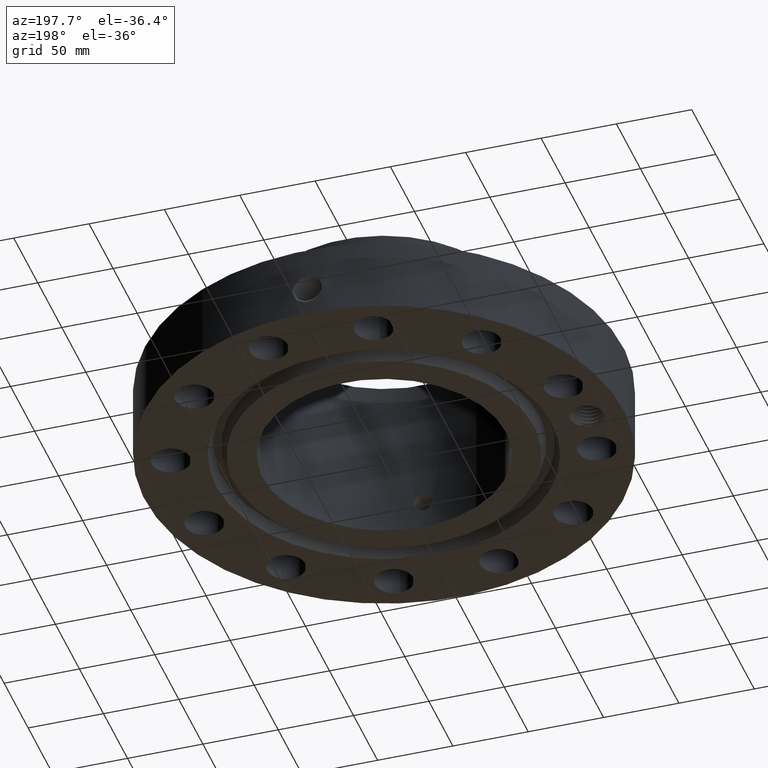
[diagram: clean part render]
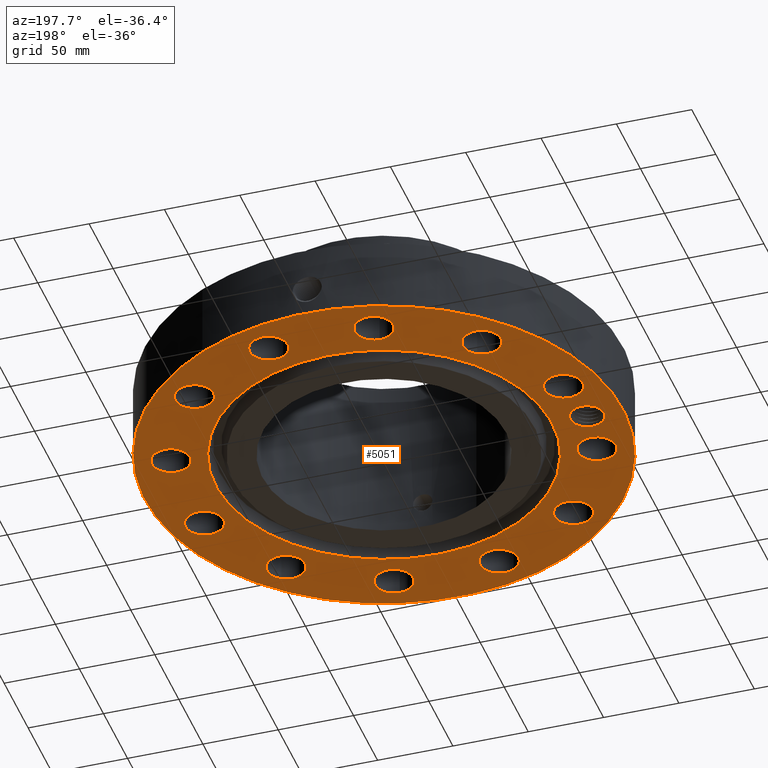
[diagram: same view with one face highlighted and labeled with its STEP entity id]
A machine part, auxiliary view. The second image highlights one B-rep face of the part: STEP entity #5051.
In plain terms, the highlighted planar face has unit normal (0, 0, -1).
Its self-contained STEP definition (entity closure, byte-faithful):
#598=AXIS2_PLACEMENT_3D('Plane Axis2P3D',#595,#596,#597) ;
#3512=AXIS2_PLACEMENT_3D('Circle Axis2P3D',#3510,#3511,$) ;
#3538=AXIS2_PLACEMENT_3D('Circle Axis2P3D',#3536,#3537,$) ;
#3811=AXIS2_PLACEMENT_3D('Circle Axis2P3D',#3809,#3810,$) ;
#3923=AXIS2_PLACEMENT_3D('Circle Axis2P3D',#3921,#3922,$) ;
#4180=AXIS2_PLACEMENT_3D('Circle Axis2P3D',#4178,#4179,$) ;
#4199=AXIS2_PLACEMENT_3D('Circle Axis2P3D',#4197,#4198,$) ;
#4223=AXIS2_PLACEMENT_3D('Circle Axis2P3D',#4221,#4222,$) ;
#4242=AXIS2_PLACEMENT_3D('Circle Axis2P3D',#4240,#4241,$) ;
#4266=AXIS2_PLACEMENT_3D('Circle Axis2P3D',#4264,#4265,$) ;
#4285=AXIS2_PLACEMENT_3D('Circle Axis2P3D',#4283,#4284,$) ;
#4309=AXIS2_PLACEMENT_3D('Circle Axis2P3D',#4307,#4308,$) ;
#4328=AXIS2_PLACEMENT_3D('Circle Axis2P3D',#4326,#4327,$) ;
#4352=AXIS2_PLACEMENT_3D('Circle Axis2P3D',#4350,#4351,$) ;
#4371=AXIS2_PLACEMENT_3D('Circle Axis2P3D',#4369,#4370,$) ;
#4395=AXIS2_PLACEMENT_3D('Circle Axis2P3D',#4393,#4394,$) ;
#4414=AXIS2_PLACEMENT_3D('Circle Axis2P3D',#4412,#4413,$) ;
#4438=AXIS2_PLACEMENT_3D('Circle Axis2P3D',#4436,#4437,$) ;
#4457=AXIS2_PLACEMENT_3D('Circle Axis2P3D',#4455,#4456,$) ;
#4481=AXIS2_PLACEMENT_3D('Circle Axis2P3D',#4479,#4480,$) ;
#4500=AXIS2_PLACEMENT_3D('Circle Axis2P3D',#4498,#4499,$) ;
#4524=AXIS2_PLACEMENT_3D('Circle Axis2P3D',#4522,#4523,$) ;
#4543=AXIS2_PLACEMENT_3D('Circle Axis2P3D',#4541,#4542,$) ;
#4567=AXIS2_PLACEMENT_3D('Circle Axis2P3D',#4565,#4566,$) ;
#4586=AXIS2_PLACEMENT_3D('Circle Axis2P3D',#4584,#4585,$) ;
#4610=AXIS2_PLACEMENT_3D('Circle Axis2P3D',#4608,#4609,$) ;
#4629=AXIS2_PLACEMENT_3D('Circle Axis2P3D',#4627,#4628,$) ;
#4653=AXIS2_PLACEMENT_3D('Circle Axis2P3D',#4651,#4652,$) ;
#4672=AXIS2_PLACEMENT_3D('Circle Axis2P3D',#4670,#4671,$) ;
#4983=AXIS2_PLACEMENT_3D('Circle Axis2P3D',#4981,#4982,$) ;
#4992=AXIS2_PLACEMENT_3D('Circle Axis2P3D',#4990,#4991,$) ;
#595=CARTESIAN_POINT('Axis2P3D Location',(0.,3.17850000001,0.)) ;
#3510=CARTESIAN_POINT('Axis2P3D Location',(0.,0.,-3.49676543189E-017)) ;
#3514=CARTESIAN_POINT('Vertex',(-2.10491782725,3.853026238,-3.49676543189E-017)) ;
#3516=CARTESIAN_POINT('Vertex',(2.10491782725,-3.853026238,-3.49676543189E-017)) ;
#3536=CARTESIAN_POINT('Axis2P3D Location',(0.,0.,-3.49676543189E-017)) ;
#3809=CARTESIAN_POINT('Axis2P3D Location',(0.,0.,5.59482469102E-016)) ;
#3813=CARTESIAN_POINT('Vertex',(-2.99640961629,-5.48489101184,8.39223703654E-016)) ;
#3815=CARTESIAN_POINT('Vertex',(2.99640961629,5.48489101184,8.39223703654E-016)) ;
#3921=CARTESIAN_POINT('Axis2P3D Location',(0.,0.,5.59482469102E-016)) ;
#4175=CARTESIAN_POINT('Vertex',(5.56785741856,-1.6140418988,0.)) ;
#4178=CARTESIAN_POINT('Axis2P3D Location',(5.12906613762,-1.3743291295,0.)) ;
#4182=CARTESIAN_POINT('Vertex',(4.69027485667,-1.1346163602,0.)) ;
#4197=CARTESIAN_POINT('Axis2P3D Location',(5.12906613762,-1.3743291295,0.)) ;
#4218=CARTESIAN_POINT('Vertex',(3.49458899651,-3.32774401981,0.)) ;
#4221=CARTESIAN_POINT('Axis2P3D Location',(3.75473700812,-3.75473700812,0.)) ;
#4225=CARTESIAN_POINT('Vertex',(4.01488501972,-4.18172999642,0.)) ;
#4240=CARTESIAN_POINT('Axis2P3D Location',(3.75473700812,-3.75473700812,0.)) ;
#4261=CARTESIAN_POINT('Vertex',(1.36253083685,-4.6292053567,0.)) ;
#4264=CARTESIAN_POINT('Axis2P3D Location',(1.3743291295,-5.12906613762,0.)) ;
#4268=CARTESIAN_POINT('Vertex',(1.38612742215,-5.62892691853,0.)) ;
#4283=CARTESIAN_POINT('Axis2P3D Location',(1.3743291295,-5.12906613762,0.)) ;
#4304=CARTESIAN_POINT('Vertex',(-1.1346163602,-4.69027485667,0.)) ;
#4307=CARTESIAN_POINT('Axis2P3D Location',(-1.3743291295,-5.12906613762,0.)) ;
#4311=CARTESIAN_POINT('Vertex',(-1.6140418988,-5.56785741856,0.)) ;
#4326=CARTESIAN_POINT('Axis2P3D Location',(-1.3743291295,-5.12906613762,0.)) ;
#4347=CARTESIAN_POINT('Vertex',(-3.32774401981,-3.49458899651,0.)) ;
#4350=CARTESIAN_POINT('Axis2P3D Location',(-3.75473700812,-3.75473700812,-1.67844740731E-015)) ;
#4354=CARTESIAN_POINT('Vertex',(-4.18172999642,-4.01488501972,-1.67844740731E-015)) ;
#4369=CARTESIAN_POINT('Axis2P3D Location',(-3.75473700812,-3.75473700812,-1.67844740731E-015)) ;
#4390=CARTESIAN_POINT('Vertex',(-4.6292053567,-1.36253083685,0.)) ;
#4393=CARTESIAN_POINT('Axis2P3D Location',(-5.12906613762,-1.3743291295,0.)) ;
#4397=CARTESIAN_POINT('Vertex',(-5.62892691853,-1.38612742215,0.)) ;
#4412=CARTESIAN_POINT('Axis2P3D Location',(-5.12906613762,-1.3743291295,0.)) ;
#4433=CARTESIAN_POINT('Vertex',(-4.69027485667,1.1346163602,0.)) ;
#4436=CARTESIAN_POINT('Axis2P3D Location',(-5.12906613762,1.3743291295,0.)) ;
#4440=CARTESIAN_POINT('Vertex',(-5.56785741856,1.6140418988,0.)) ;
#4455=CARTESIAN_POINT('Axis2P3D Location',(-5.12906613762,1.3743291295,0.)) ;
#4476=CARTESIAN_POINT('Vertex',(-3.49458899651,3.32774401981,0.)) ;
#4479=CARTESIAN_POINT('Axis2P3D Location',(-3.75473700812,3.75473700812,0.)) ;
#4483=CARTESIAN_POINT('Vertex',(-4.01488501972,4.18172999642,0.)) ;
#4498=CARTESIAN_POINT('Axis2P3D Location',(-3.75473700812,3.75473700812,0.)) ;
#4519=CARTESIAN_POINT('Vertex',(-1.36253083685,4.6292053567,0.)) ;
#4522=CARTESIAN_POINT('Axis2P3D Location',(-1.3743291295,5.12906613762,0.)) ;
#4526=CARTESIAN_POINT('Vertex',(-1.38612742215,5.62892691853,0.)) ;
#4541=CARTESIAN_POINT('Axis2P3D Location',(-1.3743291295,5.12906613762,0.)) ;
#4562=CARTESIAN_POINT('Vertex',(1.1346163602,4.69027485667,0.)) ;
#4565=CARTESIAN_POINT('Axis2P3D Location',(1.3743291295,5.12906613762,0.)) ;
#4569=CARTESIAN_POINT('Vertex',(1.6140418988,5.56785741856,0.)) ;
#4584=CARTESIAN_POINT('Axis2P3D Location',(1.3743291295,5.12906613762,0.)) ;
#4605=CARTESIAN_POINT('Vertex',(3.32774401981,3.49458899651,0.)) ;
#4608=CARTESIAN_POINT('Axis2P3D Location',(3.75473700812,3.75473700812,0.)) ;
#4612=CARTESIAN_POINT('Vertex',(4.18172999642,4.01488501972,0.)) ;
#4627=CARTESIAN_POINT('Axis2P3D Location',(3.75473700812,3.75473700812,0.)) ;
#4648=CARTESIAN_POINT('Vertex',(4.6292053567,1.36253083685,0.)) ;
#4651=CARTESIAN_POINT('Axis2P3D Location',(5.12906613762,1.3743291295,0.)) ;
#4655=CARTESIAN_POINT('Vertex',(5.62892691853,1.38612742215,0.)) ;
#4670=CARTESIAN_POINT('Axis2P3D Location',(5.12906613762,1.3743291295,0.)) ;
#4981=CARTESIAN_POINT('Axis2P3D Location',(-5.31000000002,5.59482469102E-016,0.)) ;
#4985=CARTESIAN_POINT('Vertex',(-4.92140644161,-0.212289628495,0.)) ;
#4987=CARTESIAN_POINT('Vertex',(-5.69859355843,0.212289628495,0.)) ;
#4990=CARTESIAN_POINT('Axis2P3D Location',(-5.31000000002,5.59482469102E-016,0.)) ;
#596=DIRECTION('Axis2P3D Direction',(0.,0.,-0.0393700787402)) ;
#597=DIRECTION('Axis2P3D XDirection',(0.0393700787402,0.,0.)) ;
#3511=DIRECTION('Axis2P3D Direction',(0.,0.,-0.0393700787402)) ;
#3537=DIRECTION('Axis2P3D Direction',(0.,0.,-0.0393700787402)) ;
#3810=DIRECTION('Axis2P3D Direction',(0.,0.,-0.0393700787402)) ;
#3922=DIRECTION('Axis2P3D Direction',(0.,0.,-0.0393700787402)) ;
#4179=DIRECTION('Axis2P3D Direction',(0.,-0.,-0.0393700787402)) ;
#4198=DIRECTION('Axis2P3D Direction',(0.,-0.,-0.0393700787402)) ;
#4222=DIRECTION('Axis2P3D Direction',(0.,-0.,-0.0393700787402)) ;
#4241=DIRECTION('Axis2P3D Direction',(0.,-0.,-0.0393700787402)) ;
#4265=DIRECTION('Axis2P3D Direction',(0.,-0.,-0.0393700787402)) ;
#4284=DIRECTION('Axis2P3D Direction',(0.,-0.,-0.0393700787402)) ;
#4308=DIRECTION('Axis2P3D Direction',(0.,-0.,-0.0393700787402)) ;
#4327=DIRECTION('Axis2P3D Direction',(0.,-0.,-0.0393700787402)) ;
#4351=DIRECTION('Axis2P3D Direction',(-0.,0.,-0.0393700787402)) ;
#4370=DIRECTION('Axis2P3D Direction',(-0.,0.,-0.0393700787402)) ;
#4394=DIRECTION('Axis2P3D Direction',(-0.,0.,-0.0393700787402)) ;
#4413=DIRECTION('Axis2P3D Direction',(-0.,0.,-0.0393700787402)) ;
#4437=DIRECTION('Axis2P3D Direction',(-0.,0.,-0.0393700787402)) ;
#4456=DIRECTION('Axis2P3D Direction',(-0.,0.,-0.0393700787402)) ;
#4480=DIRECTION('Axis2P3D Direction',(0.,0.,-0.0393700787402)) ;
#4499=DIRECTION('Axis2P3D Direction',(0.,0.,-0.0393700787402)) ;
#4523=DIRECTION('Axis2P3D Direction',(0.,0.,-0.0393700787402)) ;
#4542=DIRECTION('Axis2P3D Direction',(0.,0.,-0.0393700787402)) ;
#4566=DIRECTION('Axis2P3D Direction',(0.,0.,-0.0393700787402)) ;
#4585=DIRECTION('Axis2P3D Direction',(0.,0.,-0.0393700787402)) ;
#4609=DIRECTION('Axis2P3D Direction',(0.,0.,-0.0393700787402)) ;
#4628=DIRECTION('Axis2P3D Direction',(0.,0.,-0.0393700787402)) ;
#4652=DIRECTION('Axis2P3D Direction',(0.,0.,-0.0393700787402)) ;
#4671=DIRECTION('Axis2P3D Direction',(0.,0.,-0.0393700787402)) ;
#4982=DIRECTION('Axis2P3D Direction',(0.,0.,-0.0393700787402)) ;
#4991=DIRECTION('Axis2P3D Direction',(0.,0.,-0.0393700787402)) ;
#4978=ORIENTED_EDGE('',*,*,#3817,.T.) ;
#4979=ORIENTED_EDGE('',*,*,#3925,.T.) ;
#4996=ORIENTED_EDGE('',*,*,#4989,.F.) ;
#4997=ORIENTED_EDGE('',*,*,#4994,.F.) ;
#5000=ORIENTED_EDGE('',*,*,#4184,.F.) ;
#5001=ORIENTED_EDGE('',*,*,#4201,.F.) ;
#5004=ORIENTED_EDGE('',*,*,#4227,.F.) ;
#5005=ORIENTED_EDGE('',*,*,#4244,.F.) ;
#5008=ORIENTED_EDGE('',*,*,#4270,.F.) ;
#5009=ORIENTED_EDGE('',*,*,#4287,.F.) ;
#5012=ORIENTED_EDGE('',*,*,#4313,.F.) ;
#5013=ORIENTED_EDGE('',*,*,#4330,.F.) ;
#5016=ORIENTED_EDGE('',*,*,#4356,.F.) ;
#5017=ORIENTED_EDGE('',*,*,#4373,.F.) ;
#5020=ORIENTED_EDGE('',*,*,#4399,.F.) ;
#5021=ORIENTED_EDGE('',*,*,#4416,.F.) ;
#5024=ORIENTED_EDGE('',*,*,#4442,.F.) ;
#5025=ORIENTED_EDGE('',*,*,#4459,.F.) ;
#5028=ORIENTED_EDGE('',*,*,#4485,.F.) ;
#5029=ORIENTED_EDGE('',*,*,#4502,.F.) ;
#5032=ORIENTED_EDGE('',*,*,#4528,.F.) ;
#5033=ORIENTED_EDGE('',*,*,#4545,.F.) ;
#5036=ORIENTED_EDGE('',*,*,#4571,.F.) ;
#5037=ORIENTED_EDGE('',*,*,#4588,.F.) ;
#5040=ORIENTED_EDGE('',*,*,#4614,.F.) ;
#5041=ORIENTED_EDGE('',*,*,#4631,.F.) ;
#5044=ORIENTED_EDGE('',*,*,#4657,.F.) ;
#5045=ORIENTED_EDGE('',*,*,#4674,.F.) ;
#5048=ORIENTED_EDGE('',*,*,#3540,.F.) ;
#5049=ORIENTED_EDGE('',*,*,#3518,.F.) ;
#4998=FACE_BOUND('',#4995,.T.) ;
#5002=FACE_BOUND('',#4999,.T.) ;
#5006=FACE_BOUND('',#5003,.T.) ;
#5010=FACE_BOUND('',#5007,.T.) ;
#5014=FACE_BOUND('',#5011,.T.) ;
#5018=FACE_BOUND('',#5015,.T.) ;
#5022=FACE_BOUND('',#5019,.T.) ;
#5026=FACE_BOUND('',#5023,.T.) ;
#5030=FACE_BOUND('',#5027,.T.) ;
#5034=FACE_BOUND('',#5031,.T.) ;
#5038=FACE_BOUND('',#5035,.T.) ;
#5042=FACE_BOUND('',#5039,.T.) ;
#5046=FACE_BOUND('',#5043,.T.) ;
#5050=FACE_BOUND('',#5047,.T.) ;
#5051=ADVANCED_FACE('PartBody',(#4980,#4998,#5002,#5006,#5010,#5014,#5018,#5022,#5026,#5030,#5034,#5038,#5042,#5046,#5050),#599,.T.) ;
#3513=CIRCLE('generated circle',#3512,4.39050000002) ;
#3539=CIRCLE('generated circle',#3538,4.39050000002) ;
#3812=CIRCLE('generated circle',#3811,6.25000000003) ;
#3924=CIRCLE('generated circle',#3923,6.25000000003) ;
#4181=CIRCLE('generated circle',#4180,0.500000000002) ;
#4200=CIRCLE('generated circle',#4199,0.500000000002) ;
#4224=CIRCLE('generated circle',#4223,0.500000000002) ;
#4243=CIRCLE('generated circle',#4242,0.500000000002) ;
#4267=CIRCLE('generated circle',#4266,0.500000000002) ;
#4286=CIRCLE('generated circle',#4285,0.500000000002) ;
#4310=CIRCLE('generated circle',#4309,0.500000000002) ;
#4329=CIRCLE('generated circle',#4328,0.500000000002) ;
#4353=CIRCLE('generated circle',#4352,0.500000000002) ;
#4372=CIRCLE('generated circle',#4371,0.500000000002) ;
#4396=CIRCLE('generated circle',#4395,0.500000000002) ;
#4415=CIRCLE('generated circle',#4414,0.500000000002) ;
#4439=CIRCLE('generated circle',#4438,0.500000000002) ;
#4458=CIRCLE('generated circle',#4457,0.500000000002) ;
#4482=CIRCLE('generated circle',#4481,0.500000000002) ;
#4501=CIRCLE('generated circle',#4500,0.500000000002) ;
#4525=CIRCLE('generated circle',#4524,0.500000000002) ;
#4544=CIRCLE('generated circle',#4543,0.500000000002) ;
#4568=CIRCLE('generated circle',#4567,0.500000000002) ;
#4587=CIRCLE('generated circle',#4586,0.500000000002) ;
#4611=CIRCLE('generated circle',#4610,0.500000000002) ;
#4630=CIRCLE('generated circle',#4629,0.500000000002) ;
#4654=CIRCLE('generated circle',#4653,0.500000000002) ;
#4673=CIRCLE('generated circle',#4672,0.500000000002) ;
#4984=CIRCLE('generated circle',#4983,0.442800000002) ;
#4993=CIRCLE('generated circle',#4992,0.442800000002) ;
#3518=EDGE_CURVE('',#3515,#3517,#3513,.T.) ;
#3540=EDGE_CURVE('',#3517,#3515,#3539,.T.) ;
#3817=EDGE_CURVE('',#3814,#3816,#3812,.T.) ;
#3925=EDGE_CURVE('',#3816,#3814,#3924,.T.) ;
#4184=EDGE_CURVE('',#4176,#4183,#4181,.T.) ;
#4201=EDGE_CURVE('',#4183,#4176,#4200,.T.) ;
#4227=EDGE_CURVE('',#4219,#4226,#4224,.T.) ;
#4244=EDGE_CURVE('',#4226,#4219,#4243,.T.) ;
#4270=EDGE_CURVE('',#4262,#4269,#4267,.T.) ;
#4287=EDGE_CURVE('',#4269,#4262,#4286,.T.) ;
#4313=EDGE_CURVE('',#4305,#4312,#4310,.T.) ;
#4330=EDGE_CURVE('',#4312,#4305,#4329,.T.) ;
#4356=EDGE_CURVE('',#4348,#4355,#4353,.T.) ;
#4373=EDGE_CURVE('',#4355,#4348,#4372,.T.) ;
#4399=EDGE_CURVE('',#4391,#4398,#4396,.T.) ;
#4416=EDGE_CURVE('',#4398,#4391,#4415,.T.) ;
#4442=EDGE_CURVE('',#4434,#4441,#4439,.T.) ;
#4459=EDGE_CURVE('',#4441,#4434,#4458,.T.) ;
#4485=EDGE_CURVE('',#4477,#4484,#4482,.T.) ;
#4502=EDGE_CURVE('',#4484,#4477,#4501,.T.) ;
#4528=EDGE_CURVE('',#4520,#4527,#4525,.T.) ;
#4545=EDGE_CURVE('',#4527,#4520,#4544,.T.) ;
#4571=EDGE_CURVE('',#4563,#4570,#4568,.T.) ;
#4588=EDGE_CURVE('',#4570,#4563,#4587,.T.) ;
#4614=EDGE_CURVE('',#4606,#4613,#4611,.T.) ;
#4631=EDGE_CURVE('',#4613,#4606,#4630,.T.) ;
#4657=EDGE_CURVE('',#4649,#4656,#4654,.T.) ;
#4674=EDGE_CURVE('',#4656,#4649,#4673,.T.) ;
#4989=EDGE_CURVE('',#4986,#4988,#4984,.T.) ;
#4994=EDGE_CURVE('',#4988,#4986,#4993,.T.) ;
#4977=EDGE_LOOP('',(#4978,#4979)) ;
#4995=EDGE_LOOP('',(#4996,#4997)) ;
#4999=EDGE_LOOP('',(#5000,#5001)) ;
#5003=EDGE_LOOP('',(#5004,#5005)) ;
#5007=EDGE_LOOP('',(#5008,#5009)) ;
#5011=EDGE_LOOP('',(#5012,#5013)) ;
#5015=EDGE_LOOP('',(#5016,#5017)) ;
#5019=EDGE_LOOP('',(#5020,#5021)) ;
#5023=EDGE_LOOP('',(#5024,#5025)) ;
#5027=EDGE_LOOP('',(#5028,#5029)) ;
#5031=EDGE_LOOP('',(#5032,#5033)) ;
#5035=EDGE_LOOP('',(#5036,#5037)) ;
#5039=EDGE_LOOP('',(#5040,#5041)) ;
#5043=EDGE_LOOP('',(#5044,#5045)) ;
#5047=EDGE_LOOP('',(#5048,#5049)) ;
#4980=FACE_OUTER_BOUND('',#4977,.T.) ;
#599=PLANE('',#598) ;
#3515=VERTEX_POINT('',#3514) ;
#3517=VERTEX_POINT('',#3516) ;
#3814=VERTEX_POINT('',#3813) ;
#3816=VERTEX_POINT('',#3815) ;
#4176=VERTEX_POINT('',#4175) ;
#4183=VERTEX_POINT('',#4182) ;
#4219=VERTEX_POINT('',#4218) ;
#4226=VERTEX_POINT('',#4225) ;
#4262=VERTEX_POINT('',#4261) ;
#4269=VERTEX_POINT('',#4268) ;
#4305=VERTEX_POINT('',#4304) ;
#4312=VERTEX_POINT('',#4311) ;
#4348=VERTEX_POINT('',#4347) ;
#4355=VERTEX_POINT('',#4354) ;
#4391=VERTEX_POINT('',#4390) ;
#4398=VERTEX_POINT('',#4397) ;
#4434=VERTEX_POINT('',#4433) ;
#4441=VERTEX_POINT('',#4440) ;
#4477=VERTEX_POINT('',#4476) ;
#4484=VERTEX_POINT('',#4483) ;
#4520=VERTEX_POINT('',#4519) ;
#4527=VERTEX_POINT('',#4526) ;
#4563=VERTEX_POINT('',#4562) ;
#4570=VERTEX_POINT('',#4569) ;
#4606=VERTEX_POINT('',#4605) ;
#4613=VERTEX_POINT('',#4612) ;
#4649=VERTEX_POINT('',#4648) ;
#4656=VERTEX_POINT('',#4655) ;
#4986=VERTEX_POINT('',#4985) ;
#4988=VERTEX_POINT('',#4987) ;